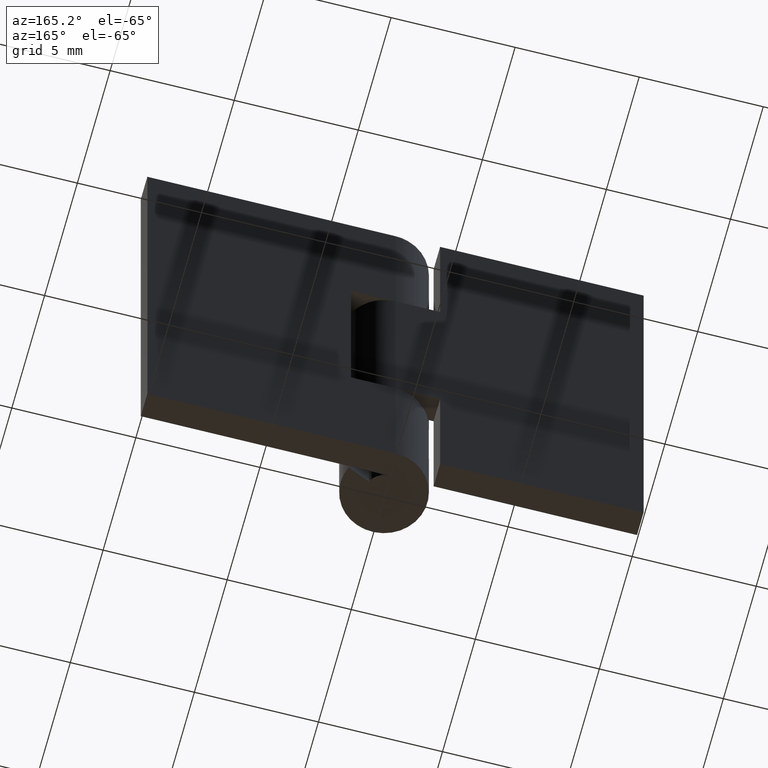
[diagram: clean part render]
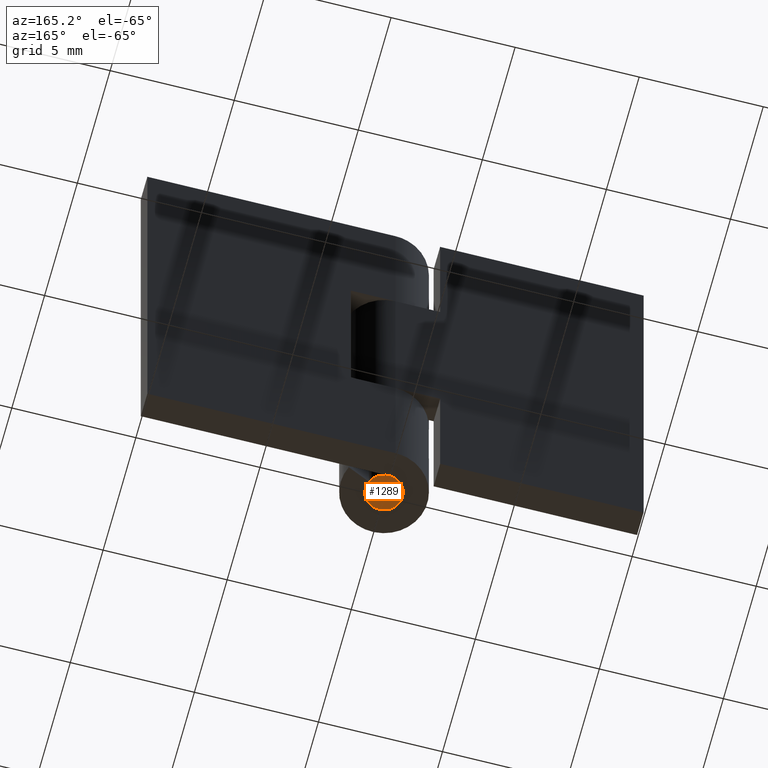
[diagram: same view with one face highlighted and labeled with its STEP entity id]
A machine part, auxiliary view. The second image highlights one B-rep face of the part: STEP entity #1289.
In plain terms, the highlighted face is a freeform B-spline surface patch.
Its self-contained STEP definition (entity closure, byte-faithful):
#1110=CARTESIAN_POINT('',(0.088524327653827,-0.744757305040772,-2.271543E-015));
#1111=VERTEX_POINT('',#1110);
#1112=CARTESIAN_POINT('',(-0.750000000000000,0.0,0.0));
#1113=VERTEX_POINT('',#1112);
#1114=CARTESIAN_POINT('',(0.088524327653827,-0.744757305040772,-2.271543E-015));
#1115=CARTESIAN_POINT('',(0.044417408442512,-0.750000000000000,0.0));
#1116=CARTESIAN_POINT('',(0.0,-0.750000000000000,0.0));
#1117=CARTESIAN_POINT('',(-0.750000000000000,-0.750000000000000,0.0));
#1118=CARTESIAN_POINT('',(-0.750000000000000,0.0,0.0));
#1126=(BOUNDED_CURVE()B_SPLINE_CURVE(2,(#1114,#1115,#1116,#1117,#1118),.UNSPECIFIED.,.F.,.U.)B_SPLINE_CURVE_WITH_KNOTS((3,2,3),(0.229562779486059,0.250000000000000,0.500000000000000),.UNSPECIFIED.)CURVE()GEOMETRIC_REPRESENTATION_ITEM()RATIONAL_B_SPLINE_CURVE((0.956027353903297,0.976056306800286,1.0,0.707106781186548,1.0))REPRESENTATION_ITEM(''));
#1127=EDGE_CURVE('',#1111,#1113,#1126,.T.);
#1168=CARTESIAN_POINT('',(-0.045786404661588,0.748601098815761,5.551115E-017));
#1169=VERTEX_POINT('',#1168);
#1175=CARTESIAN_POINT('',(-0.750000000000000,0.0,0.0));
#1176=CARTESIAN_POINT('',(-0.750000000000000,0.705529550159546,0.0));
#1177=CARTESIAN_POINT('',(-0.045786404661588,0.748601098815761,5.551115E-017));
#1185=(BOUNDED_CURVE()B_SPLINE_CURVE(2,(#1175,#1176,#1177),.UNSPECIFIED.,.F.,.U.)B_SPLINE_CURVE_WITH_KNOTS((3,3),(0.500000000000000,0.739332962237153),.UNSPECIFIED.)CURVE()GEOMETRIC_REPRESENTATION_ITEM()RATIONAL_B_SPLINE_CURVE((1.0,0.719603993288807,0.976072041662882))REPRESENTATION_ITEM(''));
#1186=EDGE_CURVE('',#1113,#1169,#1185,.T.);
#1213=CARTESIAN_POINT('',(0.750000000000000,0.0,0.0));
#1214=VERTEX_POINT('',#1213);
#1215=CARTESIAN_POINT('',(0.750000000000000,0.0,0.0));
#1216=CARTESIAN_POINT('',(0.750000000000000,-0.666132108944602,0.0));
#1217=CARTESIAN_POINT('',(0.088524327653827,-0.744757305040772,-2.271543E-015));
#1225=(BOUNDED_CURVE()B_SPLINE_CURVE(2,(#1215,#1216,#1217),.UNSPECIFIED.,.F.,.U.)B_SPLINE_CURVE_WITH_KNOTS((3,3),(0.0,0.229562779486059),.UNSPECIFIED.)CURVE()GEOMETRIC_REPRESENTATION_ITEM()RATIONAL_B_SPLINE_CURVE((1.0,0.731050474386262,0.956027353903297))REPRESENTATION_ITEM(''));
#1226=EDGE_CURVE('',#1214,#1111,#1225,.T.);
#1228=CARTESIAN_POINT('',(-0.045786404661588,0.748601098815761,5.551115E-017));
#1229=CARTESIAN_POINT('',(-0.022914572484416,0.750000000000000,0.0));
#1230=CARTESIAN_POINT('',(0.0,0.750000000000000,0.0));
#1231=CARTESIAN_POINT('',(0.750000000000000,0.750000000000000,0.0));
#1232=CARTESIAN_POINT('',(0.750000000000000,0.0,0.0));
#1240=(BOUNDED_CURVE()B_SPLINE_CURVE(2,(#1228,#1229,#1230,#1231,#1232),.UNSPECIFIED.,.F.,.U.)B_SPLINE_CURVE_WITH_KNOTS((3,2,3),(0.739332962237153,0.750000000000000,1.0),.UNSPECIFIED.)CURVE()GEOMETRIC_REPRESENTATION_ITEM()RATIONAL_B_SPLINE_CURVE((0.976072041662882,0.987502787897741,1.0,0.707106781186548,1.0))REPRESENTATION_ITEM(''));
#1241=EDGE_CURVE('',#1169,#1214,#1240,.T.);
#1278=CARTESIAN_POINT('',(-0.824924997092709,-0.824911398401539,0.0));
#1279=CARTESIAN_POINT('',(0.824925037325844,-0.824911398401539,0.0));
#1280=CARTESIAN_POINT('',(-0.824924997092709,0.824906744768898,0.0));
#1281=CARTESIAN_POINT('',(0.824925037325844,0.824906744768898,0.0));
#1282=B_SPLINE_SURFACE_WITH_KNOTS('',1,1,((#1278,#1280),(#1279,#1281)),.UNSPECIFIED.,.F.,.F.,.U.,(2,2),(2,2),(0.041708334948495,0.958291687403247),(0.041715889776871,0.958281524871662),.UNSPECIFIED.);
#1283=ORIENTED_EDGE('',*,*,#1226,.T.);
#1284=ORIENTED_EDGE('',*,*,#1127,.T.);
#1285=ORIENTED_EDGE('',*,*,#1186,.T.);
#1286=ORIENTED_EDGE('',*,*,#1241,.T.);
#1287=EDGE_LOOP('',(#1283,#1284,#1285,#1286));
#1288=FACE_OUTER_BOUND('',#1287,.T.);
#1289=ADVANCED_FACE('',(#1288),#1282,.F.);